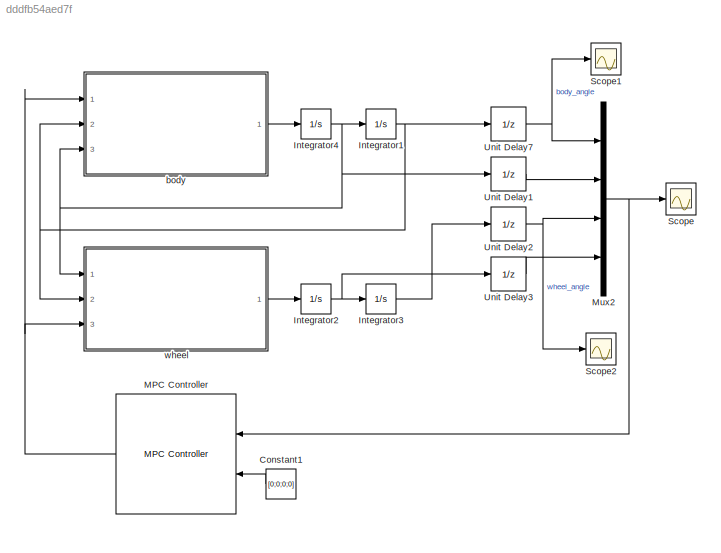
MODEL slx_dddfb54aed7f
KIND model
CONFIG AbsTol = auto
CONFIG EnableMultiTasking = off
CONFIG FixedStep = auto
CONFIG MaxStep = auto
CONFIG MinStep = auto
CONFIG RelTol = 1e-3
CONFIG SampleTimeConstraint = Unconstrained
CONFIG Solver = VariableStepAuto
CONFIG SolverName = VariableStepAuto
CONFIG StartTime = 0.0
CONFIG StopTime = 5
BLOCK [Constant] Constant1
  Value = [0;0;0;0]
BLOCK [Integrator] Integrator1
  InitialCondition = 1
  Ports = [1, 1]
BLOCK [Integrator] Integrator2
  Ports = [1, 1]
BLOCK [Integrator] Integrator3
  Ports = [1, 1]
BLOCK [Integrator] Integrator4
  Ports = [1, 1]
BLOCK [Reference] MPC Controller  REF=mpclib/MPC Controller  (lib defined in mdl_ae329e0e0455)
  Ports = [2, 1]
  SCDEnableBlockLinearizationSpecification = on
  SourceBlock = mpclib/MPC Controller
  SourceProductBaseCode = MP
  SourceProductName = Model Predictive Control Toolbox
  SourceType = MPC
BLOCK [Mux] Mux2
  DisplayOption = bar
  Ports = [4, 1]
BLOCK [Scope] Scope
  Floating = off
  NumInputPorts = 1
  Ports = [1]
  ScopeSpecificationString = Simulink.scopes.TimeScopeBlockCfg('CurrentConfiguration', extmgr.ConfigurationSet(extmgr.Configuration('Core','General UI',true),extmgr.Configuration('Core','Source UI',true),extmgr.Configuration('Sources','WiredSimulink',true),extmgr.Configuration('Visuals','Time Domain',true,'SerializedDisplays',{struct('MinYLimReal','-164102.79014','MaxYLimReal','270377.47067','YLabelReal','','MinYLimMag','    ...<+1441ch>
BLOCK [Scope] Scope1
  Floating = off
  NumInputPorts = 1
  Ports = [1]
  ScopeSpecificationString = Simulink.scopes.TimeScopeBlockCfg('CurrentConfiguration', extmgr.ConfigurationSet(extmgr.Configuration('Core','General UI',true),extmgr.Configuration('Core','Source UI',true),extmgr.Configuration('Sources','WiredSimulink',true,'DataLoggingVariableName','ScopeData1'),extmgr.Configuration('Visuals','Time Domain',true,'SerializedDisplays',{struct('MinYLimReal','-161.19955','MaxYLimReal','642.34487','...<+1413ch>
BLOCK [Scope] Scope2
  Floating = off
  NumInputPorts = 1
  Ports = [1]
  ScopeSpecificationString = Simulink.scopes.TimeScopeBlockCfg('CurrentConfiguration', extmgr.ConfigurationSet(extmgr.Configuration('Core','General UI',true),extmgr.Configuration('Core','Source UI',true),extmgr.Configuration('Sources','WiredSimulink',true,'DataLoggingVariableName','ScopeData2'),extmgr.Configuration('Visuals','Time Domain',true,'SerializedDisplays',{struct('MinYLimReal','-715.44242','MaxYLimReal','363.57698','...<+1417ch>
BLOCK [UnitDelay] Unit Delay1
  InputProcessing = Elements as channels (sample based)
  SampleTime = 0.002
BLOCK [UnitDelay] Unit Delay2
  InputProcessing = Elements as channels (sample based)
  SampleTime = 0.002
BLOCK [UnitDelay] Unit Delay3
  InputProcessing = Elements as channels (sample based)
  SampleTime = 0.002
BLOCK [UnitDelay] Unit Delay7
  InputProcessing = Elements as channels (sample based)
  SampleTime = 0.002
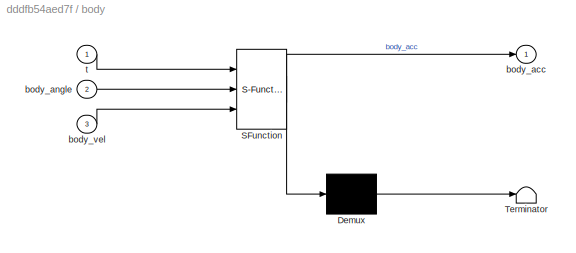
BLOCK [SubSystem] body
  ErrorFcn = Stateflow.Translate.translate
  PermitHierarchicalResolution = ExplicitOnly
  Ports = [3, 1]
  RequestExecContextInheritance = off
  SFBlockType = MATLAB Function
  TreatAsAtomicUnit = on
BLOCK [Demux] body/ Demux 
  Outputs = 1
  Ports = [1, 1]
BLOCK [S-Function] body/ SFunction 
  EnableBusSupport = on
  FunctionName = sf_sfun
  PortCounts = [3 2]
  Ports = [3, 2]
  SFcnIsStateOwnerBlock = off
  SFunctionDeploymentMode = off
  Tag = Stateflow S-Function MPC_pos 3
BLOCK [Terminator] body/ Terminator 
BLOCK [Outport] body/body_acc
  IconDisplay = Port number
BLOCK [Inport] body/body_angle
  IconDisplay = Port number
  Port = 2
BLOCK [Inport] body/body_vel
  IconDisplay = Port number
  Port = 3
BLOCK [Inport] body/t
  IconDisplay = Port number
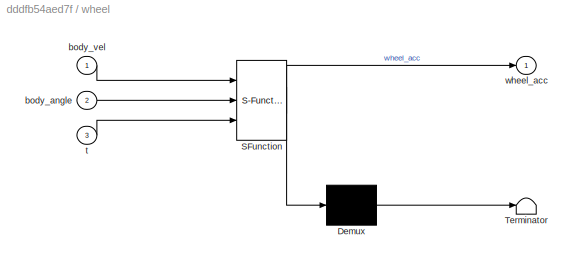
BLOCK [SubSystem] wheel
  ErrorFcn = Stateflow.Translate.translate
  PermitHierarchicalResolution = ExplicitOnly
  Ports = [3, 1]
  RequestExecContextInheritance = off
  SFBlockType = MATLAB Function
  TreatAsAtomicUnit = on
BLOCK [Demux] wheel/ Demux 
  Outputs = 1
  Ports = [1, 1]
BLOCK [S-Function] wheel/ SFunction 
  EnableBusSupport = on
  FunctionName = sf_sfun
  PortCounts = [3 2]
  Ports = [3, 2]
  SFcnIsStateOwnerBlock = off
  SFunctionDeploymentMode = off
  Tag = Stateflow S-Function MPC_pos 1
BLOCK [Terminator] wheel/ Terminator 
BLOCK [Inport] wheel/body_angle
  IconDisplay = Port number
  Port = 2
BLOCK [Inport] wheel/body_vel
  IconDisplay = Port number
BLOCK [Inport] wheel/t
  IconDisplay = Port number
  Port = 3
BLOCK [Outport] wheel/wheel_acc
  IconDisplay = Port number
LINE Constant1:1 -> MPC Controller:2
NET Integrator1:1 -> Unit Delay7:1, body:2, wheel:2
NET Integrator2:1 -> Integrator3:1, Unit Delay3:1
LINE Integrator3:1 -> Unit Delay2:1
NET Integrator4:1 -> Integrator1:1, Unit Delay1:1, body:3, wheel:1
NET MPC Controller:1 -> body:1, wheel:3
NET Mux2:1 -> MPC Controller:1, Scope:1
LINE Unit Delay1:1 -> Mux2:2
NET Unit Delay2:1 -> Mux2:3, Scope2:1
LINE Unit Delay3:1 -> Mux2:4
NET Unit Delay7:1 -> Mux2:1, Scope1:1
LINE body:1 -> Integrator4:1
LINE wheel:1 -> Integrator2:1
note: NET lines group one-source signal fan-out (src -> all destinations, sorted); 1:1 wires keep LINE
CHART wheel states=1 transitions=1
  STATE_LABEL 'eML_blk_kernel()'
  STATE_LABEL 'SCRIPT:\nfunction wheel_acc = wheel_model(body_vel,body_angle,t)\nwheel_acc=(-1225.31*sin(2*body_angle)+(5377.69+2083.85*cos(body_angle))*t+20.005*sin(body_angle)*body_vel*body_vel)/(2.1931+cos(body_angle)*cos(body_angle)+8.75194*sin(body_angle)*sin(body_angle));\n\n'
CHART body states=1 transitions=1
  STATE_LABEL 'eML_blk_kernel()'
  STATE_LABEL 'SCRIPT:\nfunction body_acc = body_model(t,body_angle,body_vel)\nbody_acc=(+1429.48*sin(body_angle)-1215.55*t-2083.85*t*cos(body_angle)-3.87597*sin(2*body_angle)*body_vel^2)/(2.91931+cos(body_angle)^2+8.75194*sin(body_angle)^2);\n'
